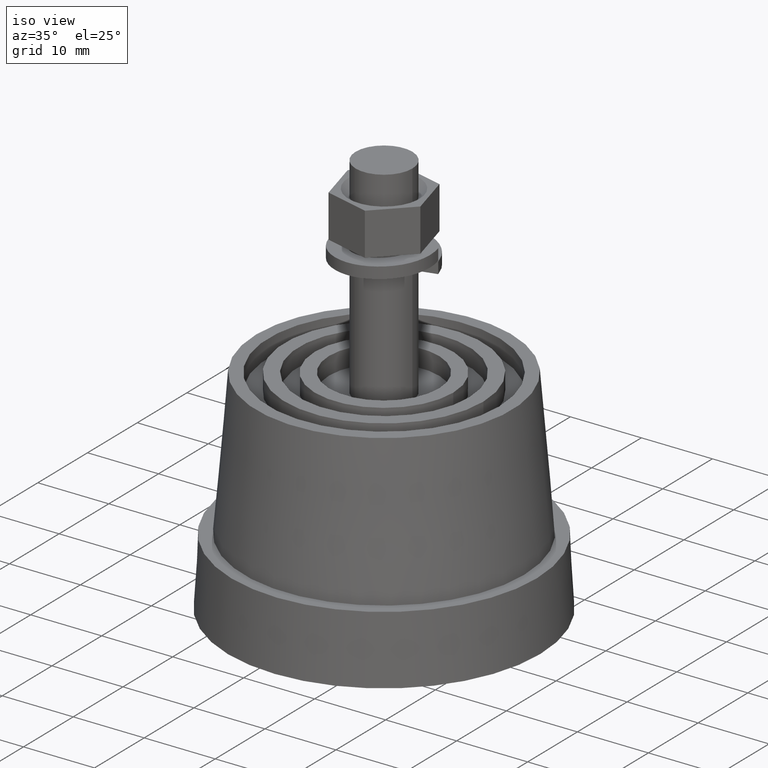
[diagram: clean part render]
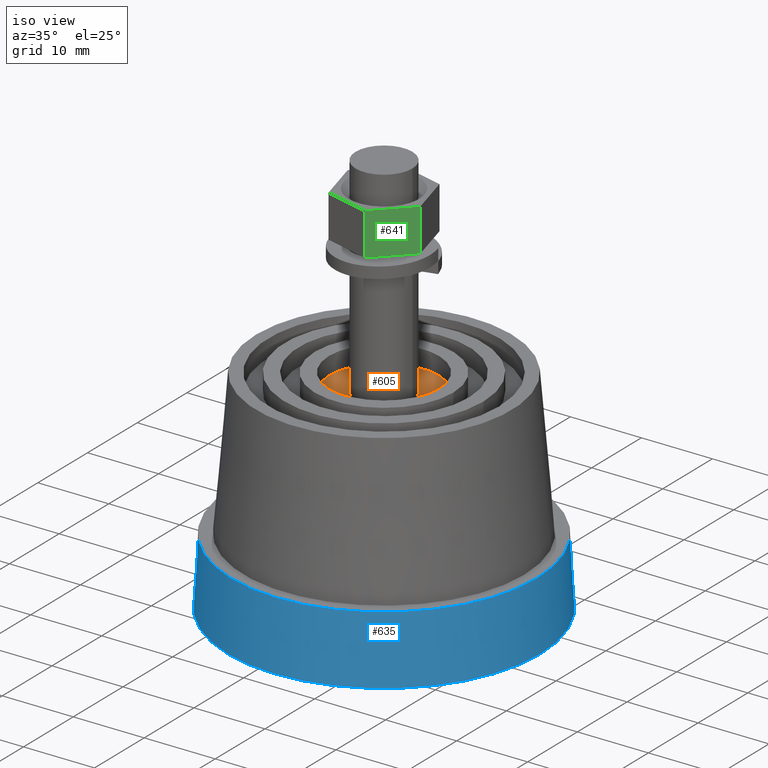
[diagram: same view with three faces highlighted in distinct colors, each labeled with its STEP entity id]
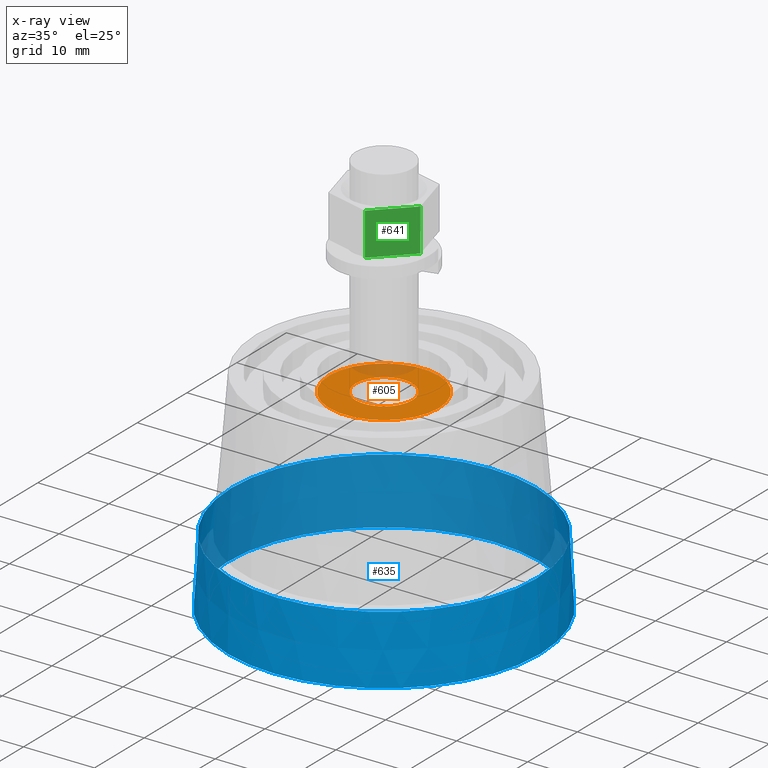
[diagram: x-ray of the same camera — body ghosted, the three highlighted faces saturated]
A machine part, iso view with three faces highlighted in distinct colors.
The next image is the same camera in x-ray (body ghosted, the three faces saturated) — at least one of them is partly hidden behind the body in this view.
Their STEP definitions:

[orange] entity #605 — the highlighted planar face has unit normal (0, 0, -1).
#98=PLANE('',#661);
#125=FACE_BOUND('',#214,.T.);
#162=FACE_OUTER_BOUND('',#213,.T.);
#213=EDGE_LOOP('',(#457));
#214=EDGE_LOOP('',(#458));
#297=CIRCLE('',#659,4.);
#298=CIRCLE('',#662,7.75);
#333=VERTEX_POINT('',#959);
#334=VERTEX_POINT('',#963);
#389=EDGE_CURVE('',#333,#333,#297,.T.);
#390=EDGE_CURVE('',#334,#334,#298,.T.);
#457=ORIENTED_EDGE('',*,*,#390,.F.);
#458=ORIENTED_EDGE('',*,*,#389,.T.);
#605=ADVANCED_FACE('',(#162,#125),#98,.F.);
#659=AXIS2_PLACEMENT_3D('',#960,#753,#754);
#661=AXIS2_PLACEMENT_3D('',#962,#757,#758);
#662=AXIS2_PLACEMENT_3D('',#964,#759,#760);
#753=DIRECTION('center_axis',(0.,0.,-1.));
#754=DIRECTION('ref_axis',(1.,0.,0.));
#757=DIRECTION('center_axis',(0.,0.,-1.));
#758=DIRECTION('ref_axis',(-1.,0.,0.));
#759=DIRECTION('center_axis',(0.,0.,-1.));
#760=DIRECTION('ref_axis',(-1.,0.,0.));
#959=CARTESIAN_POINT('',(4.,0.,27.5));
#960=CARTESIAN_POINT('Origin',(0.,0.,27.5));
#962=CARTESIAN_POINT('Origin',(0.,0.,27.5));
#963=CARTESIAN_POINT('',(7.75,-9.49101269339199E-16,27.5));
#964=CARTESIAN_POINT('Origin',(0.,0.,27.5));

[blue] entity #635 — the highlighted conical surface has half-angle 3.013 deg.
#94=CONICAL_SURFACE('',#721,22.,3.01278750418336);
#154=FACE_BOUND('',#273,.T.);
#192=FACE_OUTER_BOUND('',#272,.T.);
#272=EDGE_LOOP('',(#516));
#273=EDGE_LOOP('',(#517));
#325=CIRCLE('',#714,22.);
#327=CIRCLE('',#719,21.5);
#361=VERTEX_POINT('',#1042);
#363=VERTEX_POINT('',#1049);
#417=EDGE_CURVE('',#361,#361,#325,.T.);
#419=EDGE_CURVE('',#363,#363,#327,.T.);
#516=ORIENTED_EDGE('',*,*,#417,.T.);
#517=ORIENTED_EDGE('',*,*,#419,.T.);
#635=ADVANCED_FACE('',(#192,#154),#94,.T.);
#714=AXIS2_PLACEMENT_3D('',#1043,#863,#864);
#719=AXIS2_PLACEMENT_3D('',#1050,#873,#874);
#721=AXIS2_PLACEMENT_3D('',#1052,#877,#878);
#863=DIRECTION('center_axis',(0.,0.,1.));
#864=DIRECTION('ref_axis',(-1.,0.,0.));
#873=DIRECTION('center_axis',(0.,0.,-1.));
#874=DIRECTION('ref_axis',(-1.,0.,0.));
#877=DIRECTION('center_axis',(0.,0.,-1.));
#878=DIRECTION('ref_axis',(-1.,0.,0.));
#1042=CARTESIAN_POINT('',(-22.,0.,0.));
#1043=CARTESIAN_POINT('Origin',(0.,0.,0.));
#1049=CARTESIAN_POINT('',(-21.5,0.,9.5));
#1050=CARTESIAN_POINT('Origin',(0.,0.,9.5));
#1052=CARTESIAN_POINT('Origin',(0.,0.,0.));

[green] entity #641 — the highlighted planar face has unit normal (0.7098, -0.7044, 0).
#30=LINE('',#1067,#56);
#40=LINE('',#1090,#66);
#41=LINE('',#1092,#67);
#42=LINE('',#1093,#68);
#56=VECTOR('',#894,6.5);
#66=VECTOR('',#910,6.5);
#67=VECTOR('',#913,6.);
#68=VECTOR('',#914,6.);
#116=PLANE('',#732);
#198=FACE_OUTER_BOUND('',#284,.T.);
#284=EDGE_LOOP('',(#538,#539,#540,#541));
#368=VERTEX_POINT('',#1064);
#369=VERTEX_POINT('',#1066);
#374=VERTEX_POINT('',#1079);
#379=VERTEX_POINT('',#1088);
#424=EDGE_CURVE('',#368,#369,#30,.T.);
#435=EDGE_CURVE('',#379,#374,#40,.T.);
#436=EDGE_CURVE('',#368,#374,#41,.T.);
#437=EDGE_CURVE('',#369,#379,#42,.T.);
#538=ORIENTED_EDGE('',*,*,#424,.F.);
#539=ORIENTED_EDGE('',*,*,#436,.T.);
#540=ORIENTED_EDGE('',*,*,#435,.F.);
#541=ORIENTED_EDGE('',*,*,#437,.F.);
#641=ADVANCED_FACE('',(#198),#116,.T.);
#732=AXIS2_PLACEMENT_3D('',#1091,#911,#912);
#894=DIRECTION('',(-1.70803542250024E-16,0.,-1.));
#910=DIRECTION('',(1.70803542250024E-16,0.,1.));
#911=DIRECTION('center_axis',(-1.,0.,1.70803542250024E-16));
#912=DIRECTION('ref_axis',(1.77635683940025E-16,0.,1.));
#913=DIRECTION('',(0.,1.,0.));
#914=DIRECTION('',(0.,1.,0.));
#1064=CARTESIAN_POINT('',(-5.62916512459885,0.,3.25));
#1066=CARTESIAN_POINT('',(-5.62916512459885,0.,-3.25));
#1067=CARTESIAN_POINT('',(-5.62916512459885,0.,3.25));
#1079=CARTESIAN_POINT('',(-5.62916512459885,6.,3.25));
#1088=CARTESIAN_POINT('',(-5.62916512459885,6.,-3.25));
#1090=CARTESIAN_POINT('',(-5.62916512459885,6.,3.25));
#1091=CARTESIAN_POINT('Origin',(-5.62916512459885,0.,-3.25));
#1092=CARTESIAN_POINT('',(-5.62916512459885,0.,3.25));
#1093=CARTESIAN_POINT('',(-5.62916512459885,0.,-3.25));